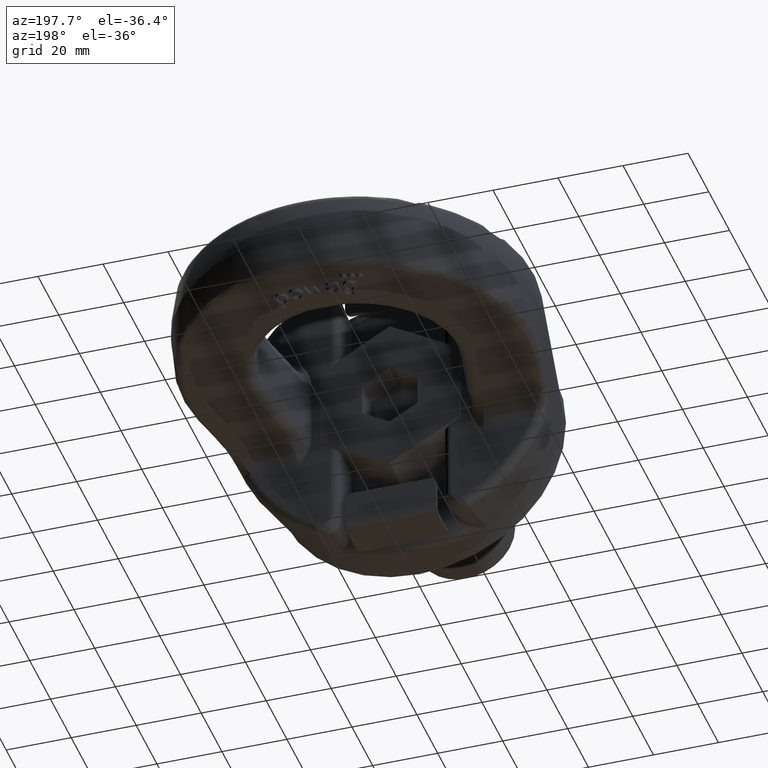
[diagram: clean part render]
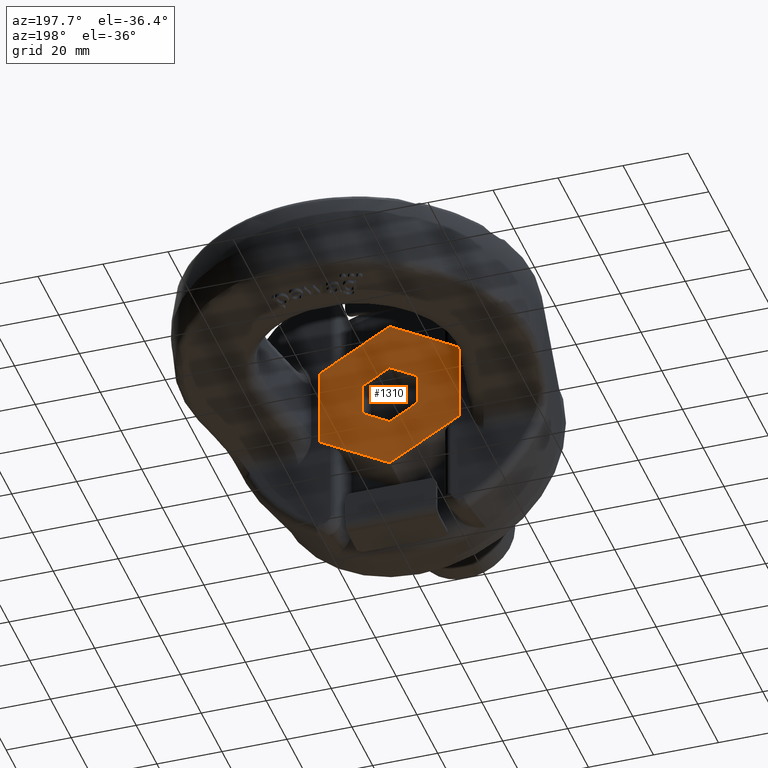
[diagram: same view with one face highlighted and labeled with its STEP entity id]
A machine part, auxiliary view. The second image highlights one B-rep face of the part: STEP entity #1310.
In plain terms, the highlighted planar face has unit normal (0, -1, 0).
Its self-contained STEP definition (entity closure, byte-faithful):
#1310=ADVANCED_FACE('',(#1765,#1766),#1549,.F.);
#1549=PLANE('',#5123);
#1765=FACE_BOUND('',#1821,.T.);
#1766=FACE_BOUND('',#1822,.T.);
#1821=EDGE_LOOP('',(#2755,#2756,#2757,#2758,#2759,#2760));
#1822=EDGE_LOOP('',(#2761,#2762,#2763,#2764,#2765,#2766));
#2113=LINE('',#6529,#2393);
#2114=LINE('',#6532,#2394);
#2115=LINE('',#6534,#2395);
#2116=LINE('',#6536,#2396);
#2117=LINE('',#6538,#2397);
#2118=LINE('',#6540,#2398);
#2119=LINE('',#6541,#2399);
#2120=LINE('',#6544,#2400);
#2121=LINE('',#6546,#2401);
#2122=LINE('',#6548,#2402);
#2123=LINE('',#6550,#2403);
#2124=LINE('',#6552,#2404);
#2393=VECTOR('',#5423,1.);
#2394=VECTOR('',#5424,1.);
#2395=VECTOR('',#5425,1.);
#2396=VECTOR('',#5426,1.);
#2397=VECTOR('',#5427,1.);
#2398=VECTOR('',#5428,1.);
#2399=VECTOR('',#5429,1.);
#2400=VECTOR('',#5430,1.);
#2401=VECTOR('',#5431,1.);
#2402=VECTOR('',#5432,1.);
#2403=VECTOR('',#5433,1.);
#2404=VECTOR('',#5434,1.);
#2755=ORIENTED_EDGE('',*,*,#4319,.F.);
#2756=ORIENTED_EDGE('',*,*,#4320,.F.);
#2757=ORIENTED_EDGE('',*,*,#4321,.F.);
#2758=ORIENTED_EDGE('',*,*,#4322,.F.);
#2759=ORIENTED_EDGE('',*,*,#4323,.F.);
#2760=ORIENTED_EDGE('',*,*,#4324,.F.);
#2761=ORIENTED_EDGE('',*,*,#4325,.F.);
#2762=ORIENTED_EDGE('',*,*,#4326,.F.);
#2763=ORIENTED_EDGE('',*,*,#4327,.F.);
#2764=ORIENTED_EDGE('',*,*,#4328,.F.);
#2765=ORIENTED_EDGE('',*,*,#4329,.F.);
#2766=ORIENTED_EDGE('',*,*,#4330,.F.);
#3931=VERTEX_POINT('',#6530);
#3932=VERTEX_POINT('',#6531);
#3933=VERTEX_POINT('',#6533);
#3934=VERTEX_POINT('',#6535);
#3935=VERTEX_POINT('',#6537);
#3936=VERTEX_POINT('',#6539);
#3937=VERTEX_POINT('',#6542);
#3938=VERTEX_POINT('',#6543);
#3939=VERTEX_POINT('',#6545);
#3940=VERTEX_POINT('',#6547);
#3941=VERTEX_POINT('',#6549);
#3942=VERTEX_POINT('',#6551);
#4319=EDGE_CURVE('',#3931,#3932,#2113,.T.);
#4320=EDGE_CURVE('',#3933,#3931,#2114,.T.);
#4321=EDGE_CURVE('',#3934,#3933,#2115,.T.);
#4322=EDGE_CURVE('',#3935,#3934,#2116,.T.);
#4323=EDGE_CURVE('',#3936,#3935,#2117,.T.);
#4324=EDGE_CURVE('',#3932,#3936,#2118,.T.);
#4325=EDGE_CURVE('',#3937,#3938,#2119,.T.);
#4326=EDGE_CURVE('',#3939,#3937,#2120,.T.);
#4327=EDGE_CURVE('',#3940,#3939,#2121,.T.);
#4328=EDGE_CURVE('',#3941,#3940,#2122,.T.);
#4329=EDGE_CURVE('',#3942,#3941,#2123,.T.);
#4330=EDGE_CURVE('',#3938,#3942,#2124,.T.);
#5123=AXIS2_PLACEMENT_3D('',#6553,#5435,#5436);
#5423=DIRECTION('',(0.,0.,1.));
#5424=DIRECTION('',(0.866025403784439,0.,0.5));
#5425=DIRECTION('',(0.866025403784441,0.,-0.499999999999996));
#5426=DIRECTION('',(0.,0.,-1.));
#5427=DIRECTION('',(-0.86602540378444,0.,-0.499999999999998));
#5428=DIRECTION('',(-0.86602540378444,0.,0.499999999999998));
#5429=DIRECTION('',(-0.866025403784439,0.,-0.499999999999999));
#5430=DIRECTION('',(-1.76742893969078E-16,0.,-1.));
#5431=DIRECTION('',(0.86602540378444,0.,-0.499999999999997));
#5432=DIRECTION('',(0.86602540378444,0.,0.499999999999997));
#5433=DIRECTION('',(-1.76742893969078E-16,0.,1.));
#5434=DIRECTION('',(-0.866025403784441,0.,0.499999999999995));
#5435=DIRECTION('',(0.,-1.,0.));
#5436=DIRECTION('',(0.,0.,-1.));
#6529=CARTESIAN_POINT('',(21.5,29.,-12.413030787577));
#6530=CARTESIAN_POINT('',(21.5,29.,-12.4130307875769));
#6531=CARTESIAN_POINT('',(21.5,29.,12.413030787577));
#6532=CARTESIAN_POINT('',(5.81652460273401E-14,29.,-24.8260615751538));
#6533=CARTESIAN_POINT('',(5.81652460273401E-14,29.,-24.8260615751538));
#6534=CARTESIAN_POINT('',(-21.5,29.,-12.413030787577));
#6535=CARTESIAN_POINT('',(-21.5,29.,-12.413030787577));
#6536=CARTESIAN_POINT('',(-21.5,29.,12.413030787577));
#6537=CARTESIAN_POINT('',(-21.5,29.,12.413030787577));
#6538=CARTESIAN_POINT('',(0.,29.,24.8260615751538));
#6539=CARTESIAN_POINT('',(0.,29.,24.8260615751538));
#6540=CARTESIAN_POINT('',(21.5,29.,12.413030787577));
#6541=CARTESIAN_POINT('',(2.29955623829019E-14,29.,-9.8149545762236));
#6542=CARTESIAN_POINT('',(8.50000000000001,29.,-4.90747728811179));
#6543=CARTESIAN_POINT('',(2.1260838906925E-14,29.,-9.81495457622359));
#6544=CARTESIAN_POINT('',(8.5,29.,-4.90747728811181));
#6545=CARTESIAN_POINT('',(8.5,29.,4.90747728811181));
#6546=CARTESIAN_POINT('',(8.5,29.,4.90747728811181));
#6547=CARTESIAN_POINT('',(1.73472347597681E-15,29.,9.81495457622359));
#6548=CARTESIAN_POINT('',(0.,29.,9.8149545762236));
#6549=CARTESIAN_POINT('',(-8.5,29.,4.90747728811181));
#6550=CARTESIAN_POINT('',(-8.5,29.,4.90747728811181));
#6551=CARTESIAN_POINT('',(-8.49999999999999,29.,-4.90747728811183));
#6552=CARTESIAN_POINT('',(-8.49999999999999,29.,-4.90747728811183));
#6553=CARTESIAN_POINT('',(0.,29.,0.));